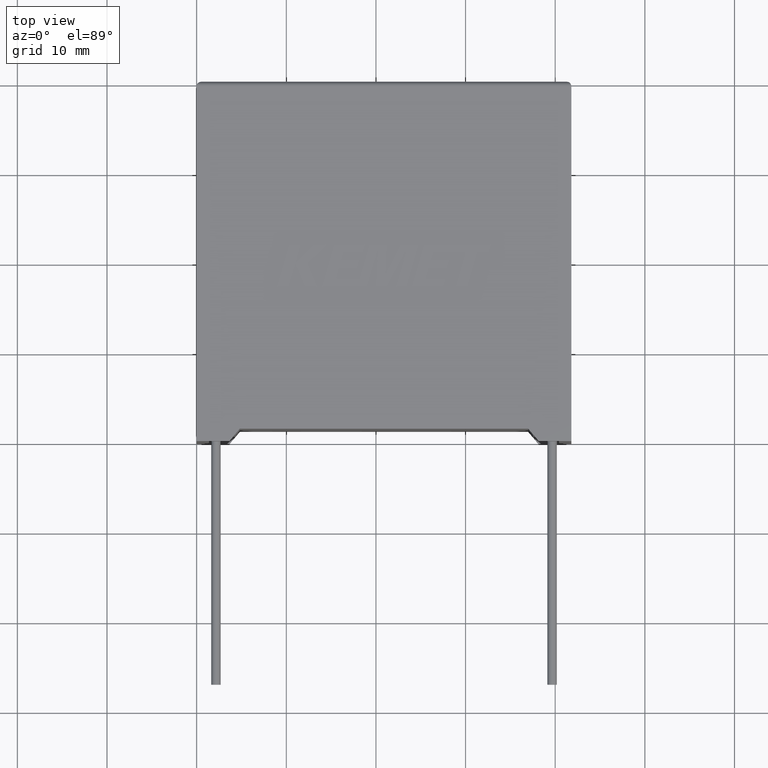
[diagram: clean part render]
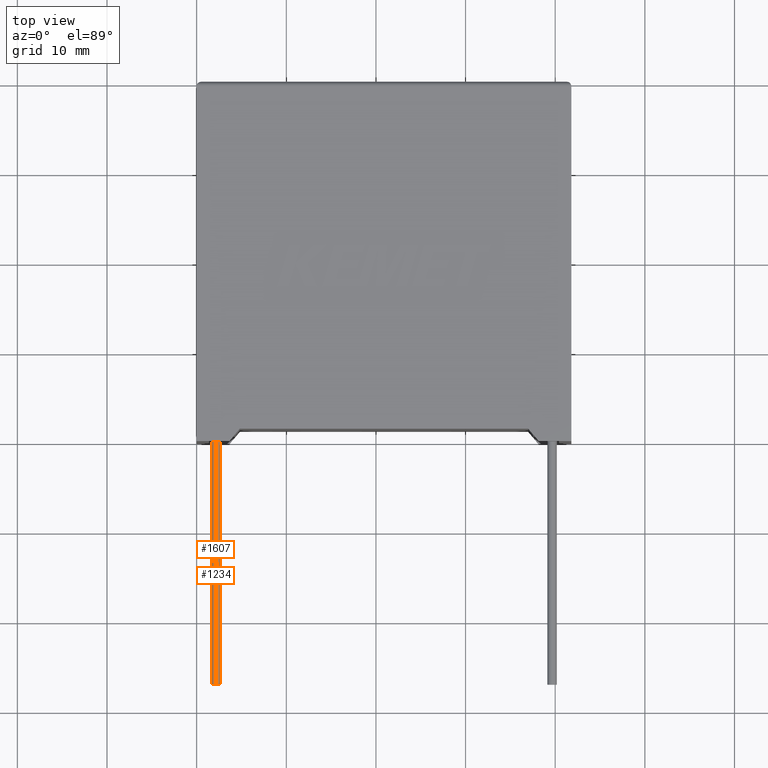
[diagram: same view with one multi-face feature highlighted, each face labeled with its STEP entity id]
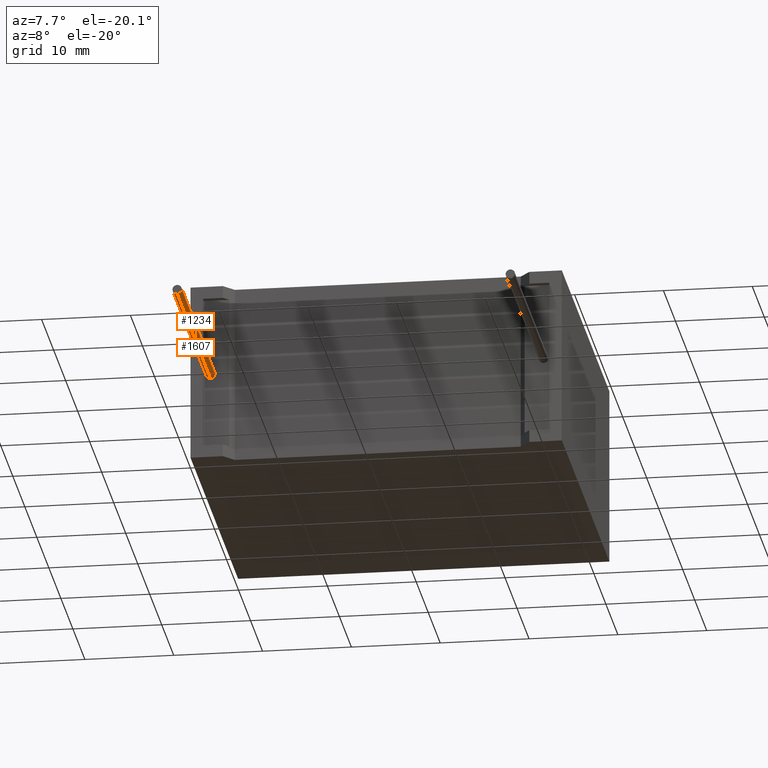
[diagram: same view with one multi-face feature highlighted, each face labeled with its STEP entity id]
A machine part, top view. The highlighted faces form ONE feature: a constant-radius fillet chain: 2 tangent blend faces with common blend radius 0.525 mm. The faces share edges in the B-rep.
A second angle (auxiliary view) of the same feature is appended — it is thin or edge-on in the first view.
Their STEP definitions:
[1] entity #1234 (Cylinder):
#46 = DIRECTION ( 'NONE',  ( -0.000000000000000000, 1.000000000000000000, -0.000000000000000000 ) ) ;
#66 = CIRCLE ( 'NONE', #674, 0.5249999999999994671 ) ;
#95 = CARTESIAN_POINT ( 'NONE',  ( 2.149999999999999023, -27.00000000000000000, 10.09999999999999964 ) ) ;
#187 = EDGE_CURVE ( 'NONE', #1517, #1456, #2787, .T. ) ;
#210 = EDGE_LOOP ( 'NONE', ( #659, #1577, #231, #1484 ) ) ;
#231 = ORIENTED_EDGE ( 'NONE', *, *, #1225, .T. ) ;
#251 = DIRECTION ( 'NONE',  ( -0.000000000000000000, 1.000000000000000000, -0.000000000000000000 ) ) ;
#507 = CYLINDRICAL_SURFACE ( 'NONE', #2327, 0.5249999999999994671 ) ;
#659 = ORIENTED_EDGE ( 'NONE', *, *, #2223, .F. ) ;
#674 = AXIS2_PLACEMENT_3D ( 'NONE', #2805, #1900, #933 ) ;
#774 = EDGE_CURVE ( 'NONE', #1762, #2255, #983, .T. ) ;
#817 = DIRECTION ( 'NONE',  ( 0.000000000000000000, -1.000000000000000000, 0.000000000000000000 ) ) ;
#833 = CIRCLE ( 'NONE', #2682, 0.5249999999999994671 ) ;
#908 = CARTESIAN_POINT ( 'NONE',  ( 2.149999999999999023, 0.7500000000000000000, 10.62499999999999822 ) ) ;
#917 = VECTOR ( 'NONE', #251, 1000.000000000000000 ) ;
#933 = DIRECTION ( 'NONE',  ( 0.000000000000000000, 0.000000000000000000, -1.000000000000000000 ) ) ;
#983 = LINE ( 'NONE', #1674, #917 ) ;
#1026 = CARTESIAN_POINT ( 'NONE',  ( 2.149999999999999023, -27.00000000000000000, 10.62499999999999822 ) ) ;
#1225 = EDGE_CURVE ( 'NONE', #2255, #1456, #66, .T. ) ;
#1234 = ADVANCED_FACE ( 'NONE', ( #2370 ), #507, .T. ) ;
#1249 = CARTESIAN_POINT ( 'NONE',  ( 2.149999999999999023, -27.00000000000000000, 10.09999999999999964 ) ) ;
#1250 = DIRECTION ( 'NONE',  ( 0.000000000000000000, 0.000000000000000000, -1.000000000000000000 ) ) ;
#1269 = DIRECTION ( 'NONE',  ( 0.000000000000000000, 0.000000000000000000, 1.000000000000000000 ) ) ;
#1305 = VECTOR ( 'NONE', #2021, 1000.000000000000000 ) ;
#1456 = VERTEX_POINT ( 'NONE', #908 ) ;
#1484 = ORIENTED_EDGE ( 'NONE', *, *, #187, .F. ) ;
#1517 = VERTEX_POINT ( 'NONE', #2106 ) ;
#1577 = ORIENTED_EDGE ( 'NONE', *, *, #774, .T. ) ;
#1674 = CARTESIAN_POINT ( 'NONE',  ( 2.149999999999999023, -27.00000000000000000, 9.574999999999999289 ) ) ;
#1762 = VERTEX_POINT ( 'NONE', #2628 ) ;
#1900 = DIRECTION ( 'NONE',  ( 0.000000000000000000, -1.000000000000000000, 0.000000000000000000 ) ) ;
#2021 = DIRECTION ( 'NONE',  ( -0.000000000000000000, 1.000000000000000000, -0.000000000000000000 ) ) ;
#2106 = CARTESIAN_POINT ( 'NONE',  ( 2.149999999999999023, -27.00000000000000000, 10.62499999999999822 ) ) ;
#2223 = EDGE_CURVE ( 'NONE', #1762, #1517, #833, .T. ) ;
#2255 = VERTEX_POINT ( 'NONE', #2895 ) ;
#2327 = AXIS2_PLACEMENT_3D ( 'NONE', #1249, #46, #1269 ) ;
#2370 = FACE_OUTER_BOUND ( 'NONE', #210, .T. ) ;
#2628 = CARTESIAN_POINT ( 'NONE',  ( 2.149999999999999023, -27.00000000000000000, 9.574999999999999289 ) ) ;
#2682 = AXIS2_PLACEMENT_3D ( 'NONE', #95, #817, #1250 ) ;
#2787 = LINE ( 'NONE', #1026, #1305 ) ;
#2805 = CARTESIAN_POINT ( 'NONE',  ( 2.149999999999999023, 0.7500000000000000000, 10.09999999999999964 ) ) ;
#2895 = CARTESIAN_POINT ( 'NONE',  ( 2.149999999999999023, 0.7500000000000000000, 9.574999999999999289 ) ) ;
[2] entity #1607 (Cylinder):
#49 = EDGE_CURVE ( 'NONE', #1456, #2255, #2509, .T. ) ;
#73 = CARTESIAN_POINT ( 'NONE',  ( 2.149999999999999023, -27.00000000000000000, 10.09999999999999964 ) ) ;
#187 = EDGE_CURVE ( 'NONE', #1517, #1456, #2787, .T. ) ;
#251 = DIRECTION ( 'NONE',  ( -0.000000000000000000, 1.000000000000000000, -0.000000000000000000 ) ) ;
#319 = DIRECTION ( 'NONE',  ( -0.000000000000000000, 1.000000000000000000, -0.000000000000000000 ) ) ;
#381 = ORIENTED_EDGE ( 'NONE', *, *, #187, .T. ) ;
#399 = DIRECTION ( 'NONE',  ( 0.000000000000000000, -1.000000000000000000, 0.000000000000000000 ) ) ;
#609 = CARTESIAN_POINT ( 'NONE',  ( 2.149999999999999023, -27.00000000000000000, 10.09999999999999964 ) ) ;
#715 = DIRECTION ( 'NONE',  ( 0.000000000000000000, -1.000000000000000000, 0.000000000000000000 ) ) ;
#774 = EDGE_CURVE ( 'NONE', #1762, #2255, #983, .T. ) ;
#908 = CARTESIAN_POINT ( 'NONE',  ( 2.149999999999999023, 0.7500000000000000000, 10.62499999999999822 ) ) ;
#917 = VECTOR ( 'NONE', #251, 1000.000000000000000 ) ;
#946 = EDGE_LOOP ( 'NONE', ( #2654, #2551, #381, #1727 ) ) ;
#983 = LINE ( 'NONE', #1674, #917 ) ;
#1000 = DIRECTION ( 'NONE',  ( 0.000000000000000000, 0.000000000000000000, 1.000000000000000000 ) ) ;
#1026 = CARTESIAN_POINT ( 'NONE',  ( 2.149999999999999023, -27.00000000000000000, 10.62499999999999822 ) ) ;
#1164 = AXIS2_PLACEMENT_3D ( 'NONE', #609, #399, #2475 ) ;
#1305 = VECTOR ( 'NONE', #2021, 1000.000000000000000 ) ;
#1351 = AXIS2_PLACEMENT_3D ( 'NONE', #73, #319, #1000 ) ;
#1404 = CARTESIAN_POINT ( 'NONE',  ( 2.149999999999999023, 0.7500000000000000000, 10.09999999999999964 ) ) ;
#1456 = VERTEX_POINT ( 'NONE', #908 ) ;
#1517 = VERTEX_POINT ( 'NONE', #2106 ) ;
#1607 = ADVANCED_FACE ( 'NONE', ( #2407 ), #2893, .T. ) ;
#1674 = CARTESIAN_POINT ( 'NONE',  ( 2.149999999999999023, -27.00000000000000000, 9.574999999999999289 ) ) ;
#1724 = EDGE_CURVE ( 'NONE', #1517, #1762, #2571, .T. ) ;
#1727 = ORIENTED_EDGE ( 'NONE', *, *, #49, .T. ) ;
#1762 = VERTEX_POINT ( 'NONE', #2628 ) ;
#1835 = AXIS2_PLACEMENT_3D ( 'NONE', #1404, #715, #1886 ) ;
#1886 = DIRECTION ( 'NONE',  ( 0.000000000000000000, 0.000000000000000000, -1.000000000000000000 ) ) ;
#2021 = DIRECTION ( 'NONE',  ( -0.000000000000000000, 1.000000000000000000, -0.000000000000000000 ) ) ;
#2106 = CARTESIAN_POINT ( 'NONE',  ( 2.149999999999999023, -27.00000000000000000, 10.62499999999999822 ) ) ;
#2255 = VERTEX_POINT ( 'NONE', #2895 ) ;
#2407 = FACE_OUTER_BOUND ( 'NONE', #946, .T. ) ;
#2475 = DIRECTION ( 'NONE',  ( 0.000000000000000000, 0.000000000000000000, -1.000000000000000000 ) ) ;
#2509 = CIRCLE ( 'NONE', #1835, 0.5249999999999994671 ) ;
#2551 = ORIENTED_EDGE ( 'NONE', *, *, #1724, .F. ) ;
#2571 = CIRCLE ( 'NONE', #1164, 0.5249999999999994671 ) ;
#2628 = CARTESIAN_POINT ( 'NONE',  ( 2.149999999999999023, -27.00000000000000000, 9.574999999999999289 ) ) ;
#2654 = ORIENTED_EDGE ( 'NONE', *, *, #774, .F. ) ;
#2787 = LINE ( 'NONE', #1026, #1305 ) ;
#2893 = CYLINDRICAL_SURFACE ( 'NONE', #1351, 0.5249999999999994671 ) ;
#2895 = CARTESIAN_POINT ( 'NONE',  ( 2.149999999999999023, 0.7500000000000000000, 9.574999999999999289 ) ) ;